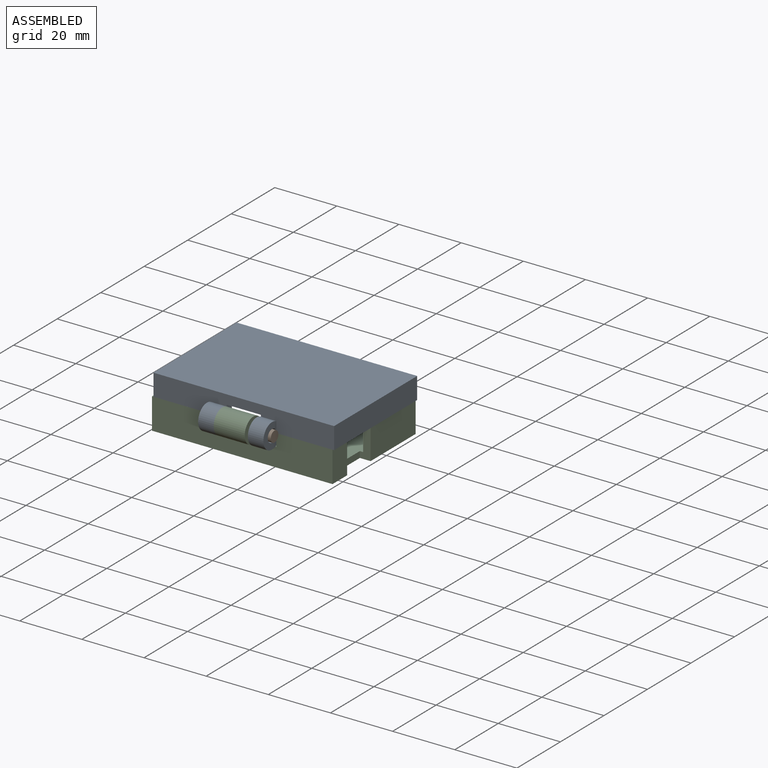
[diagram: assembled view]
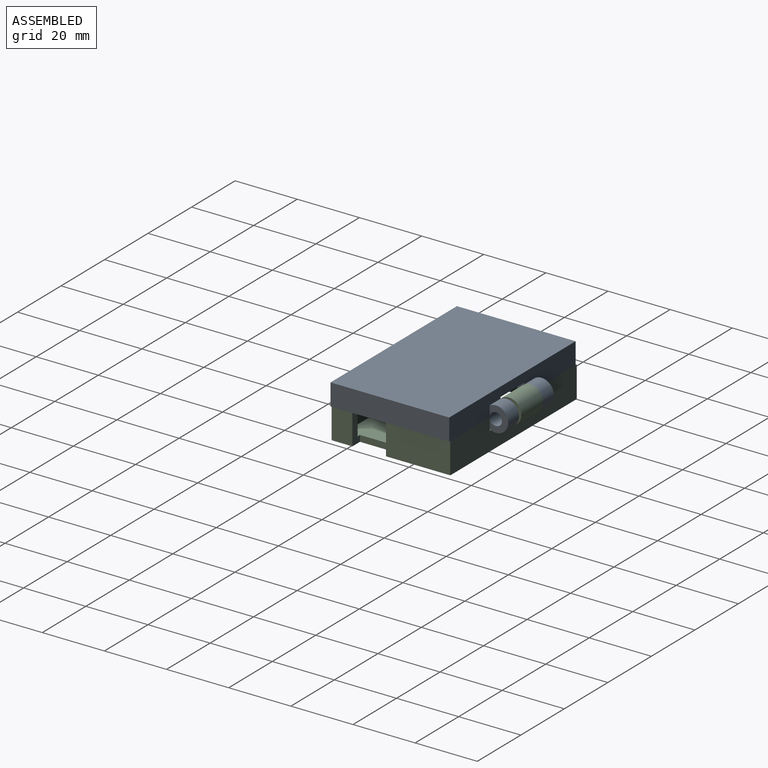
[diagram: assembled view, second angle]
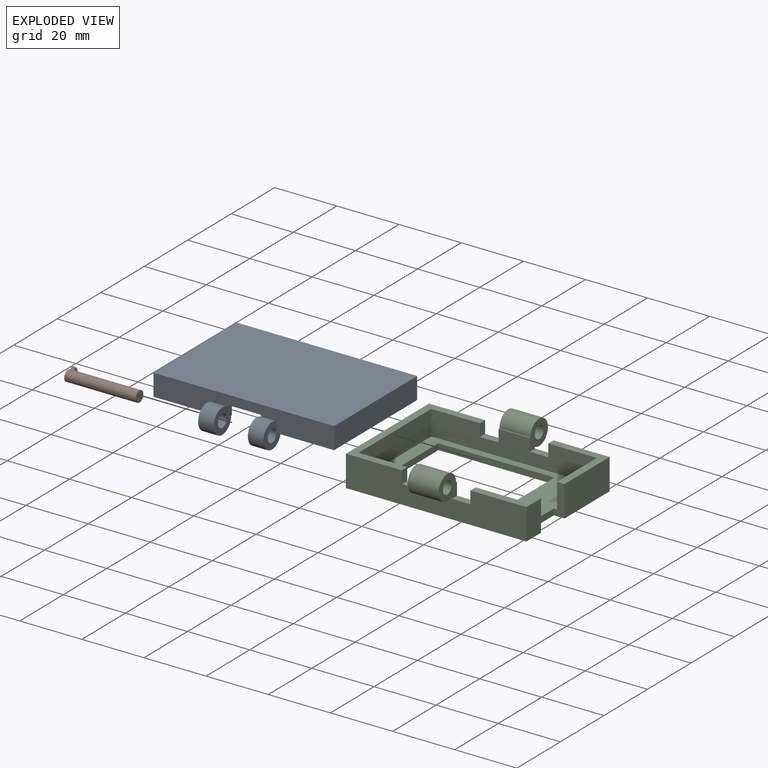
[diagram: exploded view]
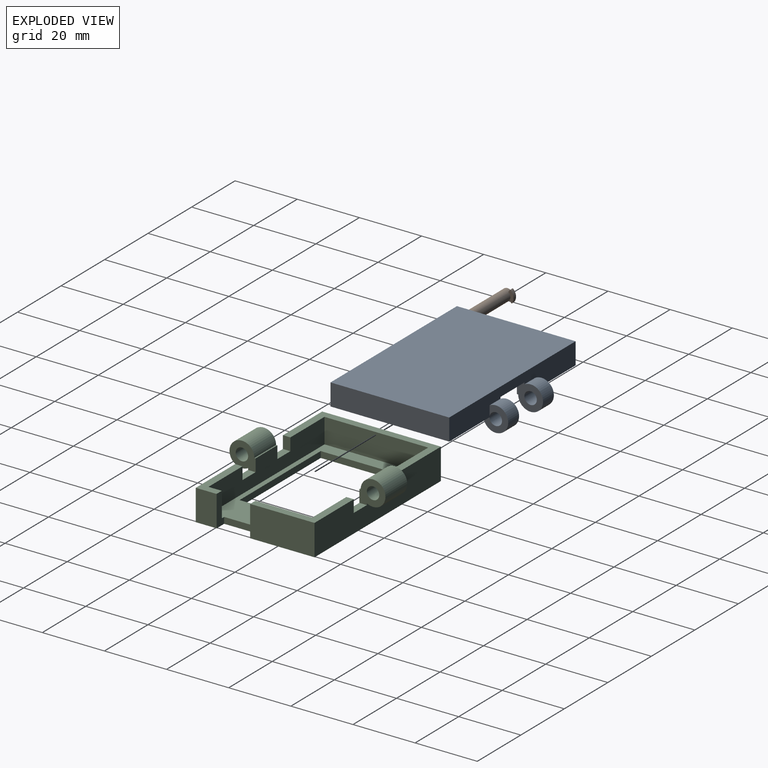
[diagram: exploded view, second angle]
ASSEMBLY  parts=3 mates=2
PART A: 30 faces, bbox 58.1x50.2x11 mm
  f0: plane 58.1x7mm, normal (0,-1,0), area 328.1mm2, adj f1,f2,f7,f8,f10,f11,f12,f16
  f1: plane 38.2x23.55mm, normal (0,0,-1), area 173.2mm2, adj f0,f3,f4,f5,f6,f7,f11,f14
  f2: plane 38.2x23.55mm, normal (0,0,-1), area 173.2mm2, adj f0,f3,f4,f6,f8,f9,f12,f15
  f3: plane 58.1x7mm, normal (0,1,0), area 328.1mm2, adj f1,f2,f7,f8,f13,f14,f15,f19
  f4: plane 53.3x5mm, normal (0,-1,0), area 222.5mm2, adj f1,f2,f5,f9,f13,f14,f15,f28
  f5: plane 33.4x5mm, normal (-1,0,0), area 167mm2, adj f1,f4,f6,f28
  f6: plane 53.3x5mm, normal (0,1,0), area 222.5mm2, adj f1,f2,f5,f9,f10,f11,f12,f28
  f7: plane 38.2x7mm, normal (1,0,0), area 267.4mm2, adj f0,f1,f3,f29
  f8: plane 38.2x7mm, normal (-1,0,0), area 267.4mm2, adj f0,f2,f3,f29
  f9: plane 33.4x5mm, normal (1,0,0), area 167mm2, adj f2,f4,f6,f28
  f10: plane 11x2.4mm, normal (0,0,-1), area 26.4mm2, adj f0,f6,f11,f12
  f11: plane 8.4x8mm, normal (-1,0,0), area 42.4mm2, adj f0,f1,f6,f10,f22,f23
  f12: plane 8.4x8mm, normal (1,0,0), area 42.4mm2, adj f0,f2,f6,f10,f17,f18
  f13: plane 11x2.4mm, normal (0,0,-1), area 26.4mm2, adj f3,f4,f14,f15
  f14: plane 8.4x8mm, normal (-1,0,0), area 42.4mm2, adj f1,f3,f4,f13,f26,f27
  f15: plane 8.4x8mm, normal (1,0,0), area 42.4mm2, adj f2,f3,f4,f13,f20,f21
  f16: plane 8x8mm, normal (-1,0,0), area 32.8mm2, adj f0,f2,f17,f18
  f17: cylinder r=4mm len=8mm, axis (1,0,0), area 104.7mm2, adj f0,f2,f12,f16
  f18: cylinder r=2mm len=5mm, axis (1,0,0), area 62.8mm2, adj f12,f16
  f19: plane 8x8mm, normal (-1,0,0), area 32.8mm2, adj f2,f3,f20,f21
  f20: cylinder r=4mm len=8mm, axis (1,0,0), area 104.7mm2, adj f2,f3,f15,f19
  f21: cylinder r=2mm len=5mm, axis (1,0,0), area 62.8mm2, adj f15,f19
  f22: cylinder r=2mm len=5mm, axis (-1,0,0), area 62.8mm2, adj f11,f24
  f23: cylinder r=4mm len=8mm, axis (-1,0,0), area 104.7mm2, adj f0,f1,f11,f24
  f24: plane 8x8mm, normal (1,0,0), area 32.8mm2, adj f0,f1,f22,f23
  f25: plane 8x8mm, normal (1,0,0), area 32.8mm2, adj f1,f3,f26,f27
  f26: cylinder r=4mm len=8mm, axis (-1,0,0), area 104.7mm2, adj f1,f3,f14,f25
  f27: cylinder r=2mm len=5mm, axis (-1,0,0), area 62.8mm2, adj f14,f25
  f28: plane 53.3x33.4mm, normal (0,0,-1), area 1780.2mm2, adj f4,f5,f6,f9
  f29: plane 58.1x38.2mm, normal (0,0,1), area 2219.4mm2, adj f0,f3,f7,f8
PART B: 7 faces, bbox 23x4.5x3.9 mm
  f0: cylinder r=1.75mm len=23mm, axis (-1,0,0), area 249.6mm2, adj f1,f2,f3,f4,f6
  f1: plane 3.5x3.5mm, normal (1,0,0), area 9.6mm2, adj f0
  f2: plane 4.5x3.91mm, normal (-1,0,0), area 13.2mm2, adj f0,f4,f5,f6
  f3: plane 3.86x1.66mm, normal (1,0,0), area 3.5mm2, adj f0,f4,f5,f6
  f4: plane 1.2x0.78mm, normal (0,-0.62,-0.78), area 1.2mm2, adj f0,f2,f3,f5
  f5: cylinder r=2.75mm len=3.86mm, axis (-1,0,0), area 5.2mm2, adj f2,f3,f4,f6
  f6: plane 1.2x0.78mm, normal (0,-0.78,0.62), area 1.2mm2, adj f0,f2,f3,f5
PART C: 40 faces, bbox 58.1x50.2x14 mm
  f0: plane 38.2x18.05mm, normal (0,0,1), area 166.8mm2, adj f2,f3,f4,f5,f14,f22,f37,f38
  f1: plane 10x0.4mm, normal (0,0,1), area 4mm2, adj f5,f28,f30,f31
  f2: plane 58.1x10mm, normal (0,1,0), area 498.4mm2, adj f0,f8,f13,f14,f19,f28,f30,f31
  f3: plane 58.1x10mm, normal (0,-1,0), area 498.4mm2, adj f0,f6,f14,f15,f19,f24,f25,f26
  f4: plane 53.3x8mm, normal (0,1,0), area 378.4mm2, adj f0,f6,f7,f20,f21,f22,f25,f26
  f5: plane 53.3x8mm, normal (0,-1,0), area 378.4mm2, adj f0,f1,f8,f20,f22,f23,f30,f31
  f6: plane 18.05x6.7mm, normal (0,0,1), area 53.6mm2, adj f3,f4,f15,f16,f21,f35
  f7: plane 10x0.4mm, normal (0,0,1), area 4mm2, adj f4,f24,f25,f26
  f8: plane 20.7x18.05mm, normal (0,0,1), area 87.2mm2, adj f2,f5,f12,f13,f23,f32
  f9: plane 29.4x2mm, normal (1,0,0), area 58.8mm2, adj f10,f18,f19,f20
  f10: plane 37.3x2mm, normal (0,-1,0), area 74.6mm2, adj f9,f11,f19,f20
  f11: plane 29.4x2mm, normal (-1,0,0), area 58.8mm2, adj f10,f18,f19,f20
  f12: plane 10x3.45mm, normal (0,-1,0), area 26.1mm2, adj f8,f13,f17,f19,f20,f23
  f13: plane 20.7x10mm, normal (1,0,0), area 207mm2, adj f2,f8,f12,f19
  f14: plane 38.2x10mm, normal (-1,0,0), area 382mm2, adj f0,f2,f3,f19
  f15: plane 10x6.7mm, normal (1,0,0), area 67mm2, adj f3,f6,f16,f19
  f16: plane 10x3.45mm, normal (0,1,0), area 26.1mm2, adj f6,f15,f17,f19,f20,f21
  f17: plane 10.8x2mm, normal (1,0,0), area 21.6mm2, adj f12,f16,f19,f20
  f18: plane 37.3x2mm, normal (0,1,0), area 74.6mm2, adj f9,f11,f19,f20
  f19: plane 58.1x38.2mm, normal (0,0,-1), area 1085.5mm2, adj f2,f3,f9,f10,f11,f12,f13,f14
  f20: plane 53.3x33.4mm, normal (0,0,1), area 672.2mm2, adj f4,f5,f9,f10,f11,f12,f16,f17
  f21: plane 8x4.3mm, normal (-1,0,0), area 34.4mm2, adj f4,f6,f16,f20
  f22: plane 33.4x8mm, normal (1,0,0), area 267.2mm2, adj f0,f4,f5,f20
  f23: plane 18.3x8mm, normal (-1,0,0), area 146.4mm2, adj f5,f8,f12,f20
  f24: cylinder r=4mm len=10mm, axis (-1,0,0), area 209.4mm2, adj f3,f7,f25,f26
  f25: plane 8.4x8mm, normal (1,0,0), area 42.4mm2, adj f3,f4,f7,f24,f27,f34
  f26: plane 8.4x8mm, normal (-1,0,0), area 42.4mm2, adj f3,f4,f7,f24,f27,f39
  f27: cylinder r=2mm len=10mm, axis (-1,0,0), area 125.7mm2, adj f25,f26
  f28: cylinder r=4mm len=10mm, axis (-1,0,0), area 209.4mm2, adj f1,f2,f30,f31
  f29: cylinder r=2mm len=10mm, axis (-1,0,0), area 125.7mm2, adj f30,f31
  f30: plane 8.4x8mm, normal (1,0,0), area 42.4mm2, adj f1,f2,f5,f28,f29,f33
  f31: plane 8.4x8mm, normal (-1,0,0), area 42.4mm2, adj f1,f2,f5,f28,f29,f36
  f32: plane 4x2.4mm, normal (-1,0,0), area 9.6mm2, adj f2,f5,f8,f33
  f33: plane 6x2.4mm, normal (0,0,1), area 14.4mm2, adj f2,f5,f30,f32
  f34: plane 6x2.4mm, normal (0,0,1), area 14.4mm2, adj f3,f4,f25,f35
  f35: plane 4x2.4mm, normal (-1,0,0), area 9.6mm2, adj f3,f4,f6,f34
  f36: plane 6x2.4mm, normal (0,0,1), area 14.4mm2, adj f2,f5,f31,f37
  f37: plane 4x2.4mm, normal (1,0,0), area 9.6mm2, adj f0,f2,f5,f36
  f38: plane 4x2.4mm, normal (1,0,0), area 9.6mm2, adj f0,f3,f4,f39
  f39: plane 6x2.4mm, normal (0,0,1), area 14.4mm2, adj f3,f4,f26,f38
PLACE A t=(11.5,-25.77,12.15)mm
PLACE B t=(-0.2,0.06,-0.06)mm
PLACE C t=(11,-25.77,12.15)mm
MATE revolute C.f24 <-> A.f17  axis (-1,0,0) through (6,-46.87,20.15)mm
MATE revolute A.f17 <-> B.f0  axis (1,0,0) through (1,-46.87,20.15)mm
